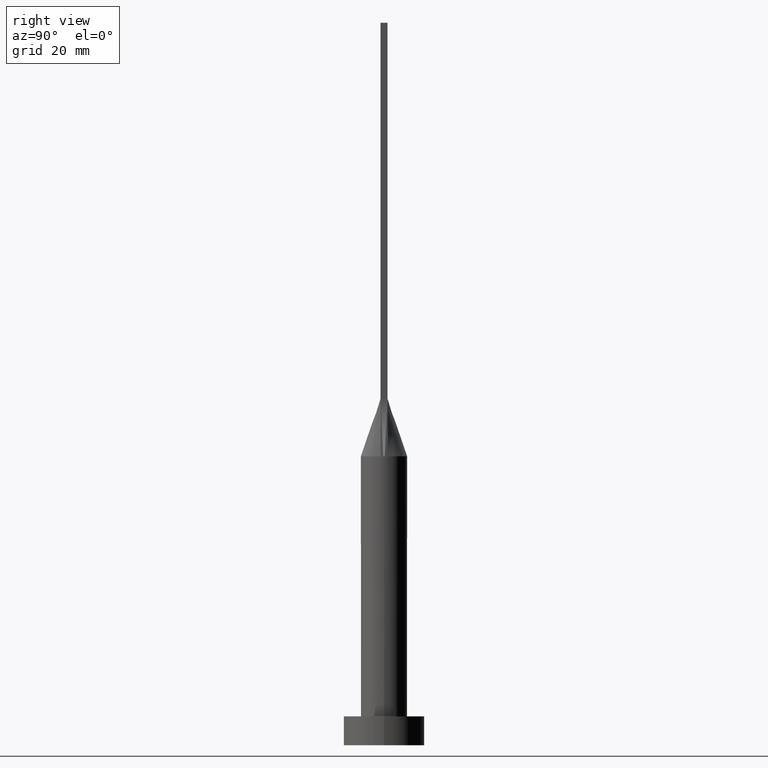
[diagram: clean part render]
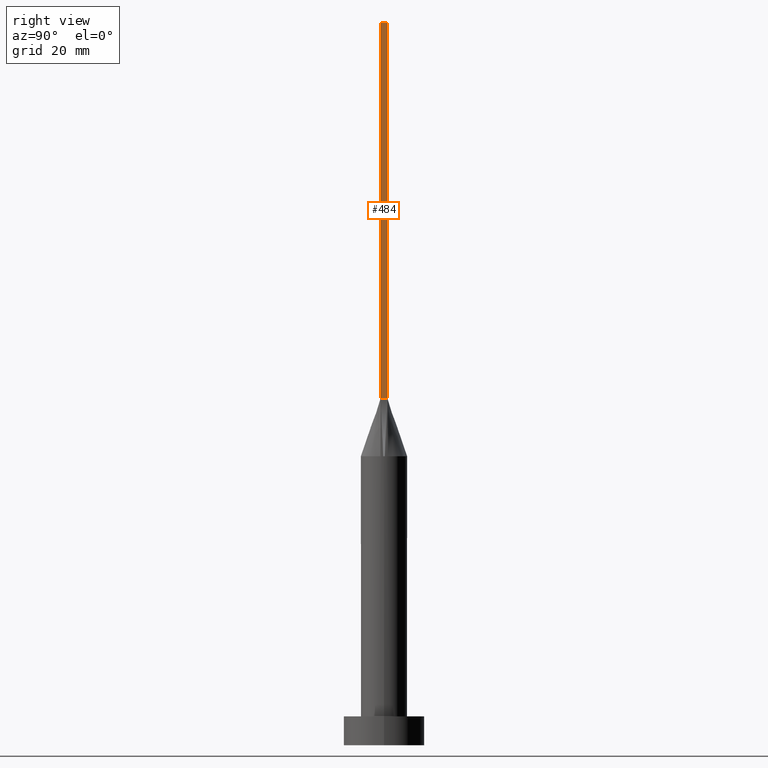
[diagram: same view with one face highlighted and labeled with its STEP entity id]
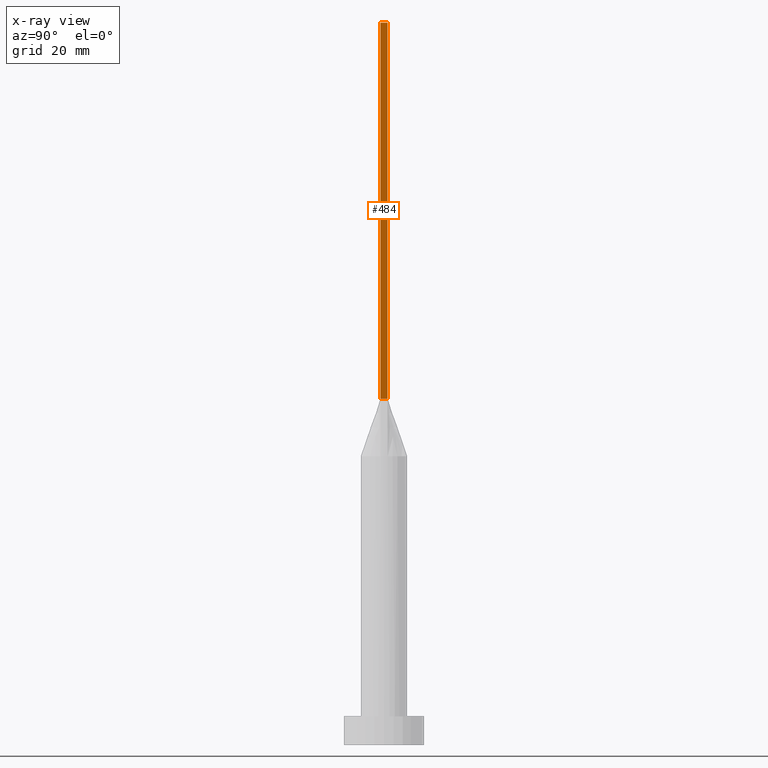
[diagram: x-ray of the same camera — body ghosted, the highlighted face saturated]
A machine part, right view. The second image highlights one B-rep face of the part: STEP entity #484.
The next image is the same camera in x-ray: the body ghosted, the highlighted face saturated — about 0% of this face is hidden behind the body in this view.
In plain terms, the highlighted planar face has unit normal (-1, 0, 0).
Its self-contained STEP definition (entity closure, byte-faithful):
#6 = DIRECTION ( 'NONE',  ( -0.000000000000000000, -0.000000000000000000, -1.000000000000000000 ) ) ;
#11 = CARTESIAN_POINT ( 'NONE',  ( 3.750000000000000000, -0.5999999999999997558, 125.0000000000000000 ) ) ;
#36 = DIRECTION ( 'NONE',  ( -0.000000000000000000, -0.000000000000000000, -1.000000000000000000 ) ) ;
#79 = ORIENTED_EDGE ( 'NONE', *, *, #314, .F. ) ;
#98 = ORIENTED_EDGE ( 'NONE', *, *, #181, .F. ) ;
#122 = VERTEX_POINT ( 'NONE', #553 ) ;
#125 = DIRECTION ( 'NONE',  ( -1.000000000000000000, 0.000000000000000000, 0.000000000000000000 ) ) ;
#129 = VERTEX_POINT ( 'NONE', #472 ) ;
#170 = CARTESIAN_POINT ( 'NONE',  ( 3.750000000000000000, -0.5999999999999997558, 125.0000000000000000 ) ) ;
#171 = PLANE ( 'NONE',  #245 ) ;
#181 = EDGE_CURVE ( 'NONE', #129, #122, #301, .T. ) ;
#193 = DIRECTION ( 'NONE',  ( 0.000000000000000000, 1.000000000000000000, 0.000000000000000000 ) ) ;
#218 = CARTESIAN_POINT ( 'NONE',  ( 3.750000000000000000, -0.5999999999999997558, 125.0000000000000000 ) ) ;
#240 = LINE ( 'NONE', #11, #552 ) ;
#245 = AXIS2_PLACEMENT_3D ( 'NONE', #255, #125, #362 ) ;
#255 = CARTESIAN_POINT ( 'NONE',  ( 3.750000000000000000, -0.5999999999999997558, 125.0000000000000000 ) ) ;
#259 = EDGE_LOOP ( 'NONE', ( #492, #98, #79, #469 ) ) ;
#274 = VERTEX_POINT ( 'NONE', #218 ) ;
#287 = VECTOR ( 'NONE', #318, 1000.000000000000000 ) ;
#301 = LINE ( 'NONE', #307, #505 ) ;
#307 = CARTESIAN_POINT ( 'NONE',  ( 3.750000000000000000, 0.6000000000000001998, 125.0000000000000000 ) ) ;
#314 = EDGE_CURVE ( 'NONE', #274, #129, #489, .T. ) ;
#318 = DIRECTION ( 'NONE',  ( -0.000000000000000000, 1.000000000000000000, -0.000000000000000000 ) ) ;
#359 = EDGE_CURVE ( 'NONE', #363, #122, #416, .T. ) ;
#362 = DIRECTION ( 'NONE',  ( 0.000000000000000000, 0.000000000000000000, 1.000000000000000000 ) ) ;
#363 = VERTEX_POINT ( 'NONE', #404 ) ;
#404 = CARTESIAN_POINT ( 'NONE',  ( 3.750000000000000000, -0.5999999999999997558, 60.00000000000000000 ) ) ;
#416 = LINE ( 'NONE', #535, #287 ) ;
#469 = ORIENTED_EDGE ( 'NONE', *, *, #571, .T. ) ;
#472 = CARTESIAN_POINT ( 'NONE',  ( 3.750000000000000000, 0.6000000000000001998, 125.0000000000000000 ) ) ;
#484 = ADVANCED_FACE ( 'NONE', ( #562 ), #171, .F. ) ;
#489 = LINE ( 'NONE', #170, #536 ) ;
#492 = ORIENTED_EDGE ( 'NONE', *, *, #359, .T. ) ;
#505 = VECTOR ( 'NONE', #36, 1000.000000000000000 ) ;
#535 = CARTESIAN_POINT ( 'NONE',  ( 3.750000000000000000, 0.6000000000000001998, 60.00000000000000000 ) ) ;
#536 = VECTOR ( 'NONE', #193, 1000.000000000000000 ) ;
#552 = VECTOR ( 'NONE', #6, 1000.000000000000000 ) ;
#553 = CARTESIAN_POINT ( 'NONE',  ( 3.750000000000000000, 0.6000000000000001998, 60.00000000000000000 ) ) ;
#562 = FACE_OUTER_BOUND ( 'NONE', #259, .T. ) ;
#571 = EDGE_CURVE ( 'NONE', #274, #363, #240, .T. ) ;